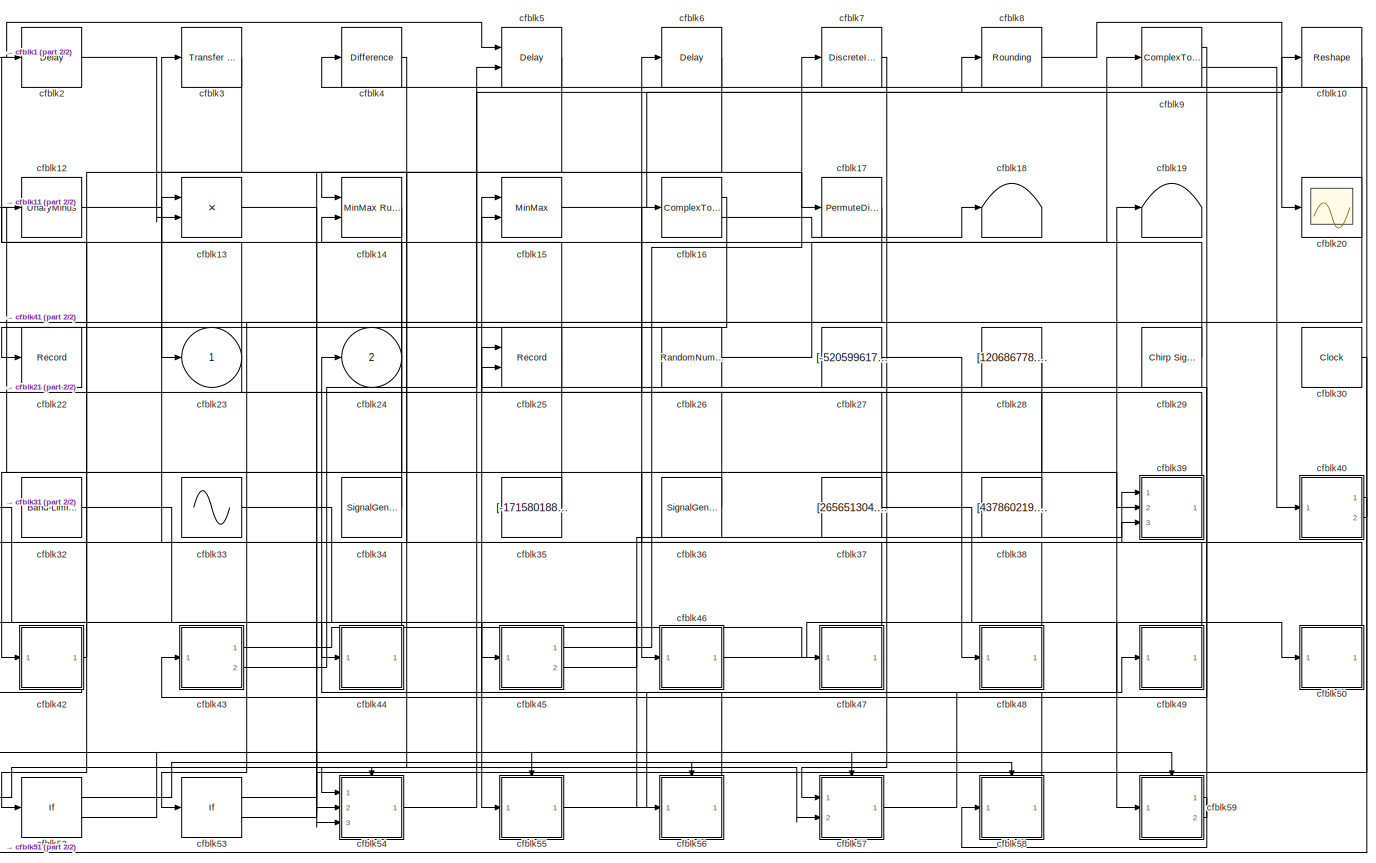
[diagram: root canvas - part 1/2, most of the canvas]
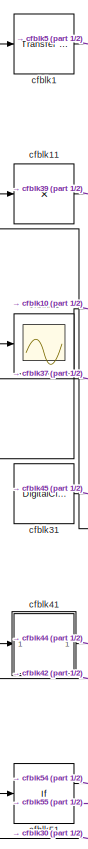
[diagram: root canvas - part 2/2, left side, full height]
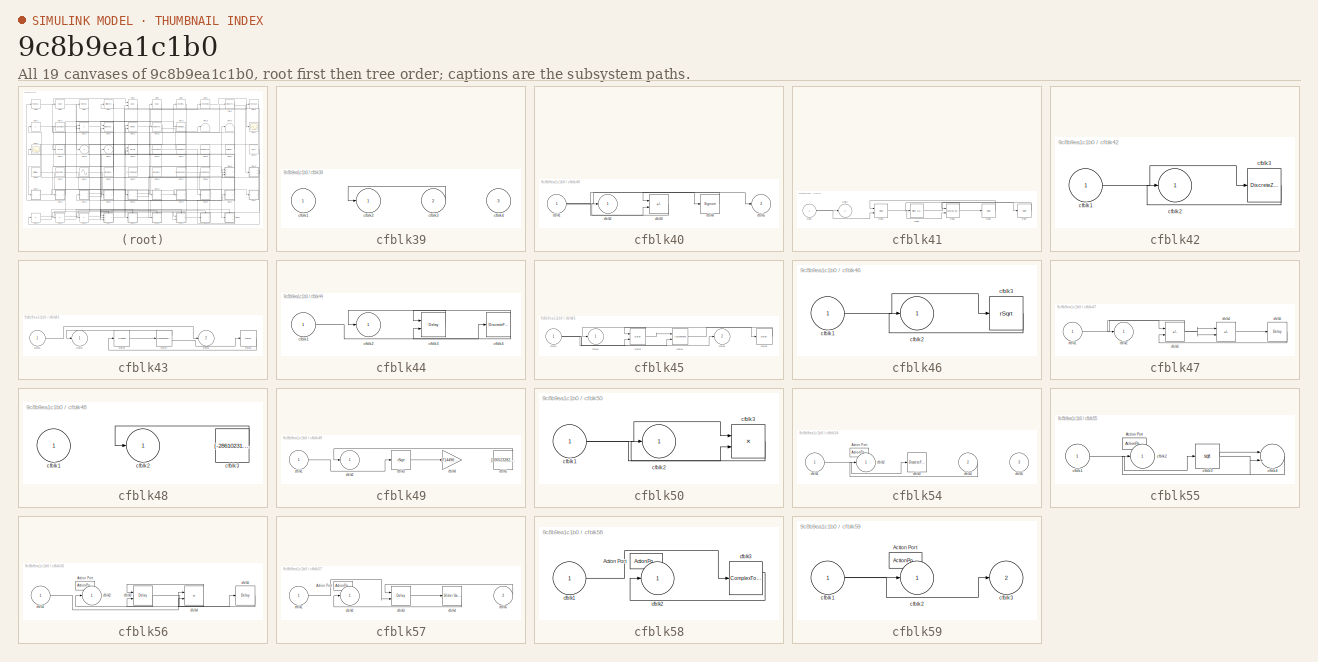
[diagram: thumbnail index - all 19 canvases of the model, root first then tree order]
MODEL slx_9c8b9ea1c1b0
KIND model
CONFIG AbsTol = auto
CONFIG EnableMultiTasking = off
CONFIG FixedStep = auto
CONFIG MaxStep = auto
CONFIG MinStep = auto
CONFIG RelTol = 1e-3
CONFIG SampleTimeConstraint = Unconstrained
CONFIG SolverName = VariableStepAuto
CONFIG StartTime = 0.0
CONFIG StopTime = 10.0
BLOCK [Reference] cfblk1  REF=simulink/Discrete/Transfer Fcn
First Order
  Ports = [1, 1]
  SourceBlock = simulink/Discrete/Transfer Fcn\nFirst Order
  SourceProductBaseCode = SL
  SourceType = First Order Transfer Fcn
BLOCK [Reshape] cfblk10
  Ports = [1, 1]
BLOCK [Product] cfblk11
  Inputs = *
  Ports = [1, 1]
BLOCK [UnaryMinus] cfblk12
BLOCK [Product] cfblk13
  Inputs = **
  Ports = [2, 1]
BLOCK [Reference] cfblk14  REF=simulink/Math
Operations/MinMax
Running
Resettable
  Ports = [2, 1]
  SourceBlock = simulink/Math\nOperations/MinMax\nRunning\nResettable
  SourceProductBaseCode = SL
  SourceType = MinMax Running Resettable
BLOCK [MinMax] cfblk15
  Inputs = 2
  Ports = [2, 1]
BLOCK [ComplexToMagnitudeAngle] cfblk16
  Ports = [1, 2]
BLOCK [PermuteDimensions] cfblk17
BLOCK [Terminator] cfblk18
BLOCK [Terminator] cfblk19
BLOCK [Delay] cfblk2
  InputPortMap = u0
  Ports = [1, 1]
  SampleTime = 1
BLOCK [Scope] cfblk20
  Floating = off
  NumInputPorts = 1
  Ports = [1]
BLOCK [Scope] cfblk21
  Floating = off
  NumInputPorts = 1
  Ports = [1]
BLOCK [Record] cfblk22
  FileSettingsInternal = {"entries":[{"content":{"excelSettings":{"content":{},"type":"Streamout.ExcelSettings"}},"type":"Streamout.FileSettingStorage","uuid":"3d8ad447-dfcb-4988-be51-32d93d39a4ce"}],"packageUris":["http://schema.mathworks.com/mf0/streamout_blocks/R2020a"],"version":"1.0"}
  Ports = [1]
  SignalsInternal = {"entries":[{"content":{"signals":[{"content":{"blockPath":["sampleModel158/cfblk22"],"channel":[],"dimensions":[1],"domain":"sampleModel158/cfblk22","lineColor":"#fe330a","plots":[1],"port":1,"sid":[""],"signalID":5944,"signalName":"cfblk16:1"},"type":"RecordBlkView.Signal","uuid":"ca8fd051-0cff-4379-907a-f7e4da9e0aee"}]},"type":"RecordBlkView.InputSignals","uuid":"9773acb8-5fd8-49b9-9c29-46ffebf...<+99ch>
  VisualizationBindings = {"sparklinesplugin":{"info":[{"bindingParametersList":[],"subplotID":1}]}}
BLOCK [Outport] cfblk23
BLOCK [Outport] cfblk24
  Port = 2
BLOCK [Record] cfblk25
  CompatibilityTag = XY
  FileSettingsInternal = {"entries":[{"content":{"excelSettings":{"content":{},"type":"Streamout.ExcelSettings"}},"type":"Streamout.FileSettingStorage","uuid":"b112123a-a63b-48c0-bff8-cf90cd7201c5"}],"packageUris":["http://schema.mathworks.com/mf0/streamout_blocks/R2020a"],"version":"1.0"}
  Layout = [1 1]
  Ports = [2]
  SignalsInternal = {"entries":[{"content":{"signals":[{"content":{"blockPath":["sampleModel158/cfblk25"],"channel":[],"dimensions":[1],"domain":"sampleModel158/cfblk25","lineColor":"#a2142f","plots":[1],"port":1,"sid":[""],"signalID":5936,"signalName":"cfblk39"},"type":"RecordBlkView.Signal","uuid":"5cd1db8c-e79a-4b33-adbb-e0f995d5e017"},{"content":{"blockPath":["sampleModel158/cfblk25"],"channel":[],"dimensions":[1...<+385ch>
  VisualizationBindings = {"xyplotplugin":{"info":[{"series":[{"bindingParametersList":[{"parameter":"X-Axis","signalID":5936,"signalName":"cfblk39"},{"parameter":"Y-Axis","signalID":5940,"signalName":"cfblk59:2"}],"seriesID":56823}],"subplotID":1}]}}
BLOCK [RandomNumber] cfblk26
  Mean = [-7084.640662]
  SampleTime = 0.1
  Seed = [895292948.000000]
  Variance = [16040.532154]
BLOCK [Constant] cfblk27
  SampleTime = 1
  Value = [-520599617.098551]
BLOCK [Constant] cfblk28
  SampleTime = 1
  Value = [120686778.050561]
BLOCK [Reference] cfblk29  REF=simulink/Sources/Chirp Signal
  Ports = [0, 1]
  SourceBlock = simulink/Sources/Chirp Signal
  SourceProductBaseCode = SL
  SourceType = chirp
BLOCK [Reference] cfblk3  REF=simulink/Discrete/Transfer Fcn
Lead or Lag
  Ports = [1, 1]
  SourceBlock = simulink/Discrete/Transfer Fcn\nLead or Lag
  SourceProductBaseCode = SL
  SourceType = Lead or Lag Compensator
BLOCK [Clock] cfblk30
BLOCK [DigitalClock] cfblk31
BLOCK [Reference] cfblk32  REF=simulink/Sources/Band-Limited
White Noise
  Ports = [0, 1]
  SourceBlock = simulink/Sources/Band-Limited\nWhite Noise
  SourceProductBaseCode = SL
  SourceType = Band-Limited White Noise.
BLOCK [Sin] cfblk33
  Amplitude = [-120247284.265731]
  Bias = [-651720609.055492]
  Ports = [0, 1]
  SampleTime = 0
BLOCK [SignalGenerator] cfblk34
  Amplitude = [-101802727.928526]
  Ports = [0, 1]
  Units = rad/sec
  WaveForm = sawtooth
BLOCK [Constant] cfblk35
  SampleTime = 1
  Value = [-171580188.476072]
BLOCK [SignalGenerator] cfblk36
  Amplitude = [814683367.479868]
  Ports = [0, 1]
BLOCK [Constant] cfblk37
  SampleTime = 1
  Value = [265651304.129176]
BLOCK [Constant] cfblk38
  SampleTime = 1
  Value = [437860219.135433]
BLOCK [SubSystem] cfblk39
  Ports = [3, 1]
  RequestExecContextInheritance = off
BLOCK [Inport] cfblk39/cfblk1
BLOCK [Outport] cfblk39/cfblk2
BLOCK [Inport] cfblk39/cfblk3
  Port = 2
BLOCK [Inport] cfblk39/cfblk4
  Port = 3
BLOCK [Reference] cfblk4  REF=simulink/Discrete/Difference
  Ports = [1, 1]
  SourceBlock = simulink/Discrete/Difference
  SourceProductBaseCode = SL
  SourceType = Difference
BLOCK [SubSystem] cfblk40
  Ports = [1, 2]
  RequestExecContextInheritance = off
BLOCK [Inport] cfblk40/cfblk1
BLOCK [Outport] cfblk40/cfblk2
BLOCK [Sum] cfblk40/cfblk3
  IconShape = rectangular
  Inputs = -+
  Ports = [2, 1]
BLOCK [Signum] cfblk40/cfblk4
BLOCK [Outport] cfblk40/cfblk5
  Port = 2
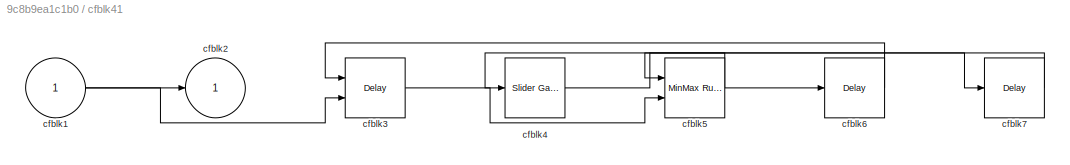
BLOCK [SubSystem] cfblk41
  Ports = [1, 1]
  RequestExecContextInheritance = off
BLOCK [Inport] cfblk41/cfblk1
BLOCK [Outport] cfblk41/cfblk2
BLOCK [Delay] cfblk41/cfblk3
  DelayLengthSource = Input port
  InputPortMap = u0,p1
  Ports = [2, 1]
  SampleTime = 1
BLOCK [Reference] cfblk41/cfblk4  REF=simulink/Math
Operations/Slider
Gain
  Ports = [1, 1]
  SourceBlock = simulink/Math\nOperations/Slider\nGain
  SourceProductBaseCode = SL
  SourceType = Slider Gain
BLOCK [Reference] cfblk41/cfblk5  REF=simulink/Math
Operations/MinMax
Running
Resettable
  Ports = [2, 1]
  SourceBlock = simulink/Math\nOperations/MinMax\nRunning\nResettable
  SourceProductBaseCode = SL
  SourceType = MinMax Running Resettable
BLOCK [Delay] cfblk41/cfblk6
  InputPortMap = u0
  Ports = [1, 1]
  SampleTime = 1
BLOCK [Delay] cfblk41/cfblk7
  InputPortMap = u0
  Ports = [1, 1]
  SampleTime = 1
BLOCK [SubSystem] cfblk42
  Ports = [1, 1]
  RequestExecContextInheritance = off
BLOCK [Inport] cfblk42/cfblk1
BLOCK [Outport] cfblk42/cfblk2
BLOCK [DiscreteZeroPole] cfblk42/cfblk3
  Gain = 1
  Poles = [0 0.5]
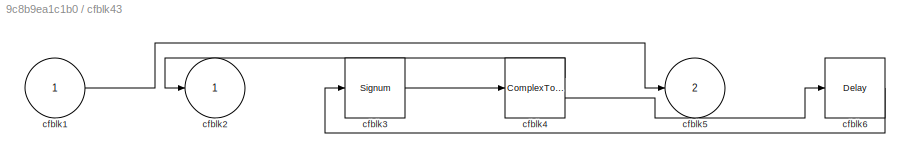
BLOCK [SubSystem] cfblk43
  Ports = [1, 2]
  RequestExecContextInheritance = off
BLOCK [Inport] cfblk43/cfblk1
BLOCK [Outport] cfblk43/cfblk2
BLOCK [Signum] cfblk43/cfblk3
BLOCK [ComplexToRealImag] cfblk43/cfblk4
  Ports = [1, 2]
BLOCK [Outport] cfblk43/cfblk5
  Port = 2
BLOCK [Delay] cfblk43/cfblk6
  InputPortMap = u0
  Ports = [1, 1]
  SampleTime = 1
BLOCK [SubSystem] cfblk44
  Ports = [1, 1]
  RequestExecContextInheritance = off
BLOCK [Inport] cfblk44/cfblk1
BLOCK [Outport] cfblk44/cfblk2
BLOCK [Delay] cfblk44/cfblk3
  DelayLengthSource = Input port
  InputPortMap = u0,p1
  Ports = [2, 1]
  SampleTime = 1
BLOCK [DiscreteFir] cfblk44/cfblk4
  InputPortMap = u0
  OutputPortMap = o0
  Ports = [1, 1]
  SampleTime = 1
BLOCK [SubSystem] cfblk45
  Ports = [1, 2]
  RequestExecContextInheritance = off
BLOCK [Inport] cfblk45/cfblk1
BLOCK [Outport] cfblk45/cfblk2
BLOCK [Delay] cfblk45/cfblk3
  InputPortMap = u0,e6
  Ports = [2, 1]
  SampleTime = 1
  ShowEnablePort = on
BLOCK [Assignment] cfblk45/cfblk4
  DiagnosticForDimensions = Warning
  IndexOptions = Index vector (dialog)
  Indices = 1
  OutputSizes = 1
  Ports = [2, 1]
BLOCK [Outport] cfblk45/cfblk5
  Port = 2
BLOCK [Delay] cfblk45/cfblk6
  InputPortMap = u0
  Ports = [1, 1]
  SampleTime = 1
BLOCK [SubSystem] cfblk46
  Ports = [1, 1]
  RequestExecContextInheritance = off
BLOCK [Inport] cfblk46/cfblk1
BLOCK [Outport] cfblk46/cfblk2
BLOCK [Sqrt] cfblk46/cfblk3
  AlgorithmType = Newton-Raphson
  Operator = rSqrt
BLOCK [SubSystem] cfblk47
  Ports = [1, 1]
  RequestExecContextInheritance = off
BLOCK [Inport] cfblk47/cfblk1
BLOCK [Outport] cfblk47/cfblk2
BLOCK [Sum] cfblk47/cfblk3
  IconShape = rectangular
  Inputs = --
  Ports = [2, 1]
BLOCK [Sum] cfblk47/cfblk4
  IconShape = rectangular
  Inputs = --
  Ports = [2, 1]
BLOCK [Delay] cfblk47/cfblk5
  InputPortMap = u0
  Ports = [1, 1]
  SampleTime = 1
BLOCK [SubSystem] cfblk48
  Ports = [1, 1]
  RequestExecContextInheritance = off
BLOCK [Inport] cfblk48/cfblk1
BLOCK [Outport] cfblk48/cfblk2
BLOCK [Constant] cfblk48/cfblk3
  SampleTime = 1
  Value = [-28610231.143134]
BLOCK [SubSystem] cfblk49
  Ports = [1, 1]
  RequestExecContextInheritance = off
BLOCK [Inport] cfblk49/cfblk1
BLOCK [Outport] cfblk49/cfblk2
BLOCK [Sqrt] cfblk49/cfblk3
  AlgorithmType = Newton-Raphson
  Operator = rSqrt
BLOCK [Gain] cfblk49/cfblk4
  Gain = [714490524.040890]
BLOCK [Constant] cfblk49/cfblk5
  SampleTime = 1
  Value = [200523282.466275]
BLOCK [Delay] cfblk5
  DelayLengthSource = Input port
  InputPortMap = u0,p1
  Ports = [2, 1]
  SampleTime = 1
BLOCK [SubSystem] cfblk50
  Ports = [1, 1]
  RequestExecContextInheritance = off
BLOCK [Inport] cfblk50/cfblk1
BLOCK [Outport] cfblk50/cfblk2
BLOCK [Product] cfblk50/cfblk3
  Inputs = **
  Ports = [2, 1]
BLOCK [If] cfblk51
  IfExpression = u1 >= 0
  Ports = [1, 2]
  SampleTime = 1
BLOCK [If] cfblk52
  IfExpression = u1 >= 0
  Ports = [1, 2]
  SampleTime = 1
BLOCK [If] cfblk53
  IfExpression = u1 >= 0
  Ports = [1, 2]
  SampleTime = 1
BLOCK [SubSystem] cfblk54
  Ports = [3, 1, 0, 0, 0, 0, 0, 1]
  RequestExecContextInheritance = off
  TreatAsAtomicUnit = on
BLOCK [ActionPort] cfblk54/Action Port
  ActionPortLabel = if(u1 >= 0)
BLOCK [Inport] cfblk54/cfblk1
BLOCK [Outport] cfblk54/cfblk2
BLOCK [DiscreteFilter] cfblk54/cfblk3
  InputPortMap = u0
  Ports = [1, 1]
BLOCK [Inport] cfblk54/cfblk4
  Port = 2
BLOCK [Inport] cfblk54/cfblk5
  Port = 3
BLOCK [SubSystem] cfblk55
  Ports = [1, 1, 0, 0, 0, 0, 0, 1]
  RequestExecContextInheritance = off
  TreatAsAtomicUnit = on
BLOCK [ActionPort] cfblk55/Action Port
  ActionPortLabel = else
BLOCK [Inport] cfblk55/cfblk1
BLOCK [Outport] cfblk55/cfblk2
BLOCK [Sqrt] cfblk55/cfblk3
BLOCK [Sum] cfblk55/cfblk4
  Inputs = |++
  Ports = [2, 1]
BLOCK [SubSystem] cfblk56
  Ports = [1, 1, 0, 0, 0, 0, 0, 1]
  RequestExecContextInheritance = off
  TreatAsAtomicUnit = on
BLOCK [ActionPort] cfblk56/Action Port
  ActionPortLabel = if(u1 >= 0)
BLOCK [Inport] cfblk56/cfblk1
BLOCK [Outport] cfblk56/cfblk2
BLOCK [Delay] cfblk56/cfblk3
  InputPortMap = u0,e6
  Ports = [2, 1]
  ShowEnablePort = on
BLOCK [Product] cfblk56/cfblk4
  Inputs = **
  Ports = [2, 1]
BLOCK [Delay] cfblk56/cfblk5
  InputPortMap = u0
  Ports = [1, 1]
BLOCK [SubSystem] cfblk57
  Ports = [2, 1, 0, 0, 0, 0, 0, 1]
  RequestExecContextInheritance = off
  TreatAsAtomicUnit = on
BLOCK [ActionPort] cfblk57/Action Port
  ActionPortLabel = else
BLOCK [Inport] cfblk57/cfblk1
BLOCK [Outport] cfblk57/cfblk2
BLOCK [Delay] cfblk57/cfblk3
  DelayLengthSource = Input port
  InputPortMap = u0,p1
  Ports = [2, 1]
BLOCK [Reference] cfblk57/cfblk4  REF=simulink/Math
Operations/Slider
Gain
  Ports = [1, 1]
  SourceBlock = simulink/Math\nOperations/Slider\nGain
  SourceProductBaseCode = SL
  SourceType = Slider Gain
BLOCK [Inport] cfblk57/cfblk5
  Port = 2
BLOCK [SubSystem] cfblk58
  Ports = [1, 1, 0, 0, 0, 0, 0, 1]
  RequestExecContextInheritance = off
  TreatAsAtomicUnit = on
BLOCK [ActionPort] cfblk58/Action Port
  ActionPortLabel = if(u1 >= 0)
BLOCK [Inport] cfblk58/cfblk1
BLOCK [Outport] cfblk58/cfblk2
BLOCK [ComplexToRealImag] cfblk58/cfblk3
  Ports = [1, 2]
BLOCK [SubSystem] cfblk59
  Ports = [1, 2, 0, 0, 0, 0, 0, 1]
  RequestExecContextInheritance = off
  TreatAsAtomicUnit = on
BLOCK [ActionPort] cfblk59/Action Port
  ActionPortLabel = else
BLOCK [Inport] cfblk59/cfblk1
BLOCK [Outport] cfblk59/cfblk2
BLOCK [Outport] cfblk59/cfblk3
  Port = 2
BLOCK [Delay] cfblk6
  InputPortMap = u0
  Ports = [1, 1]
  SampleTime = 1
BLOCK [DiscreteIntegrator] cfblk7
  ICPrevOutput = DiscIntNeverNeededParam
  ICPrevScaledInput = DiscIntNeverNeededParam
  InitialConditionSetting = Auto
  Ports = [1, 1]
BLOCK [Rounding] cfblk8
BLOCK [ComplexToRealImag] cfblk9
  Ports = [1, 2]
LINE cfblk10:1 -> cfblk41:1
LINE cfblk11:1 -> cfblk39:2
LINE cfblk12:1 -> cfblk23:1
LINE cfblk13:1 -> cfblk57:2
LINE cfblk14:1 -> cfblk42:1
LINE cfblk15:1 -> cfblk10:1
LINE cfblk16:1 -> cfblk22:1
LINE cfblk16:2 -> cfblk18:1
LINE cfblk17:1 -> cfblk53:1
LINE cfblk1:1 -> cfblk5:1
LINE cfblk26:1 -> cfblk9:1
LINE cfblk27:1 -> cfblk48:1
LINE cfblk28:1 -> cfblk46:1
LINE cfblk29:1 -> cfblk14:2
LINE cfblk2:1 -> cfblk17:1
LINE cfblk30:1 -> cfblk51:1
LINE cfblk31:1 -> cfblk45:1
LINE cfblk32:1 -> cfblk56:1
LINE cfblk33:1 -> cfblk55:1
LINE cfblk34:1 -> cfblk2:1
LINE cfblk35:1 -> cfblk15:2
LINE cfblk36:1 -> cfblk6:1
NET cfblk37:1 -> cfblk21:1, cfblk59:1
LINE cfblk38:1 -> cfblk13:1
LINE cfblk39/cfblk3:1 -> cfblk39/cfblk2:1
LINE cfblk39:1 -> cfblk25:1
LINE cfblk3:1 -> cfblk13:2
NET cfblk40/cfblk1:1 -> cfblk40/cfblk3:2, cfblk40/cfblk4:1, cfblk40/cfblk5:1
LINE cfblk40/cfblk3:1 -> cfblk40/cfblk2:1
LINE cfblk40/cfblk4:1 -> cfblk40/cfblk3:1
LINE cfblk40:1 -> cfblk54:2
LINE cfblk40:2 -> cfblk4:1
NET cfblk41/cfblk1:1 -> cfblk41/cfblk2:1, cfblk41/cfblk3:2
LINE cfblk41/cfblk3:1 -> cfblk41/cfblk5:2
LINE cfblk41/cfblk4:1 -> cfblk41/cfblk7:1
NET cfblk41/cfblk5:1 -> cfblk41/cfblk4:1, cfblk41/cfblk6:1
LINE cfblk41/cfblk6:1 -> cfblk41/cfblk3:1
LINE cfblk41/cfblk7:1 -> cfblk41/cfblk5:1
LINE cfblk41:1 -> cfblk44:1
LINE cfblk42/cfblk1:1 -> cfblk42/cfblk3:1
LINE cfblk42/cfblk3:1 -> cfblk42/cfblk2:1
NET cfblk42:1 -> cfblk12:1, cfblk1:1
LINE cfblk43/cfblk1:1 -> cfblk43/cfblk5:1
LINE cfblk43/cfblk3:1 -> cfblk43/cfblk4:1
LINE cfblk43/cfblk4:1 -> cfblk43/cfblk2:1
LINE cfblk43/cfblk4:2 -> cfblk43/cfblk6:1
LINE cfblk43/cfblk6:1 -> cfblk43/cfblk3:1
LINE cfblk43:1 -> cfblk47:1
LINE cfblk43:2 -> cfblk5:2
LINE cfblk44/cfblk1:1 -> cfblk44/cfblk4:1
LINE cfblk44/cfblk3:1 -> cfblk44/cfblk2:1
NET cfblk44/cfblk4:1 -> cfblk44/cfblk3:1, cfblk44/cfblk3:2
LINE cfblk44:1 -> cfblk11:1
NET cfblk45/cfblk1:1 -> cfblk45/cfblk3:2, cfblk45/cfblk4:2, cfblk45/cfblk5:1
NET cfblk45/cfblk3:1 -> cfblk45/cfblk2:1, cfblk45/cfblk4:1
LINE cfblk45/cfblk4:1 -> cfblk45/cfblk6:1
LINE cfblk45/cfblk6:1 -> cfblk45/cfblk3:1
LINE cfblk45:1 -> cfblk7:1
LINE cfblk45:2 -> cfblk39:3
LINE cfblk46/cfblk1:1 -> cfblk46/cfblk3:1
LINE cfblk46/cfblk3:1 -> cfblk46/cfblk2:1
LINE cfblk46:1 -> cfblk50:1
LINE cfblk47/cfblk1:1 -> cfblk47/cfblk3:1
NET cfblk47/cfblk3:1 -> cfblk47/cfblk2:1, cfblk47/cfblk4:1, cfblk47/cfblk4:2
LINE cfblk47/cfblk4:1 -> cfblk47/cfblk5:1
LINE cfblk47/cfblk5:1 -> cfblk47/cfblk3:2
LINE cfblk47:1 -> cfblk3:1
LINE cfblk48/cfblk3:1 -> cfblk48/cfblk2:1
LINE cfblk48:1 -> cfblk14:1
LINE cfblk49/cfblk1:1 -> cfblk49/cfblk3:1
LINE cfblk49/cfblk3:1 -> cfblk49/cfblk4:1
LINE cfblk49/cfblk5:1 -> cfblk49/cfblk2:1
LINE cfblk49:1 -> cfblk39:1
LINE cfblk4:1 -> cfblk54:1
NET cfblk50/cfblk1:1 -> cfblk50/cfblk3:1, cfblk50/cfblk3:2
LINE cfblk50/cfblk3:1 -> cfblk50/cfblk2:1
LINE cfblk50:1 -> cfblk16:1
LINE cfblk51:1 -> cfblk54:ifaction
LINE cfblk51:2 -> cfblk55:ifaction
LINE cfblk52:1 -> cfblk56:ifaction
LINE cfblk52:2 -> cfblk57:ifaction
LINE cfblk53:1 -> cfblk58:ifaction
LINE cfblk53:2 -> cfblk59:ifaction
LINE cfblk54/cfblk1:1 -> cfblk54/cfblk3:1
LINE cfblk54/cfblk4:1 -> cfblk54/cfblk2:1
LINE cfblk54:1 -> cfblk8:1
LINE cfblk55/cfblk1:1 -> cfblk55/cfblk3:1
NET cfblk55/cfblk3:1 -> cfblk55/cfblk4:1, cfblk55/cfblk4:2
LINE cfblk55/cfblk4:1 -> cfblk55/cfblk2:1
LINE cfblk55:1 -> cfblk19:1
LINE cfblk56/cfblk1:1 -> cfblk56/cfblk4:1
NET cfblk56/cfblk3:1 -> cfblk56/cfblk2:1, cfblk56/cfblk5:1
NET cfblk56/cfblk4:1 -> cfblk56/cfblk3:1, cfblk56/cfblk3:2
LINE cfblk56/cfblk5:1 -> cfblk56/cfblk4:2
LINE cfblk56:1 -> cfblk24:1
LINE cfblk57/cfblk1:1 -> cfblk57/cfblk3:2
LINE cfblk57/cfblk3:1 -> cfblk57/cfblk4:1
LINE cfblk57/cfblk4:1 -> cfblk57/cfblk2:1
LINE cfblk57/cfblk5:1 -> cfblk57/cfblk3:1
LINE cfblk57:1 -> cfblk49:1
LINE cfblk58/cfblk1:1 -> cfblk58/cfblk3:1
LINE cfblk58/cfblk3:1 -> cfblk58/cfblk2:1
LINE cfblk58:1 -> cfblk15:1
NET cfblk59/cfblk1:1 -> cfblk59/cfblk2:1, cfblk59/cfblk3:1
LINE cfblk59:1 -> cfblk58:1
LINE cfblk59:2 -> cfblk25:2
LINE cfblk5:1 -> cfblk54:3
LINE cfblk6:1 -> cfblk52:1
LINE cfblk7:1 -> cfblk57:1
LINE cfblk8:1 -> cfblk20:1
LINE cfblk9:1 -> cfblk43:1
LINE cfblk9:2 -> cfblk40:1
note: NET lines group one-source signal fan-out (src -> all destinations, sorted); 1:1 wires keep LINE
